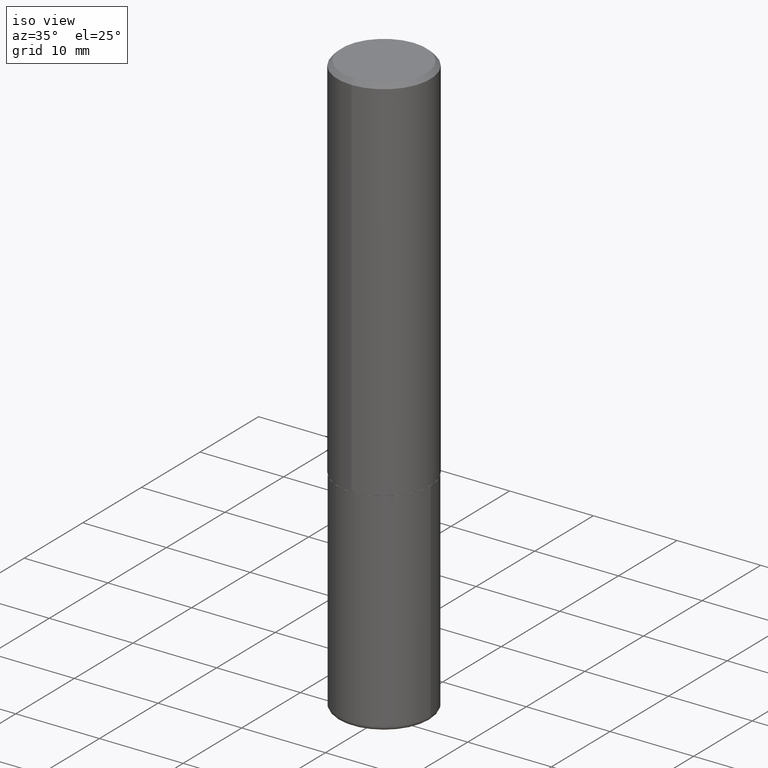
[diagram: clean part render]
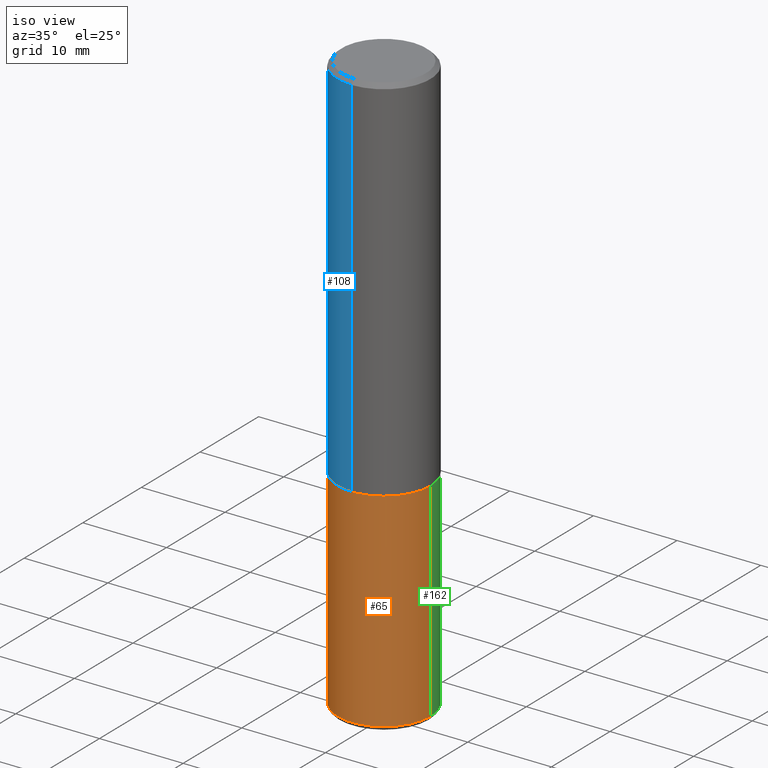
[diagram: same view with three faces highlighted in distinct colors, each labeled with its STEP entity id]
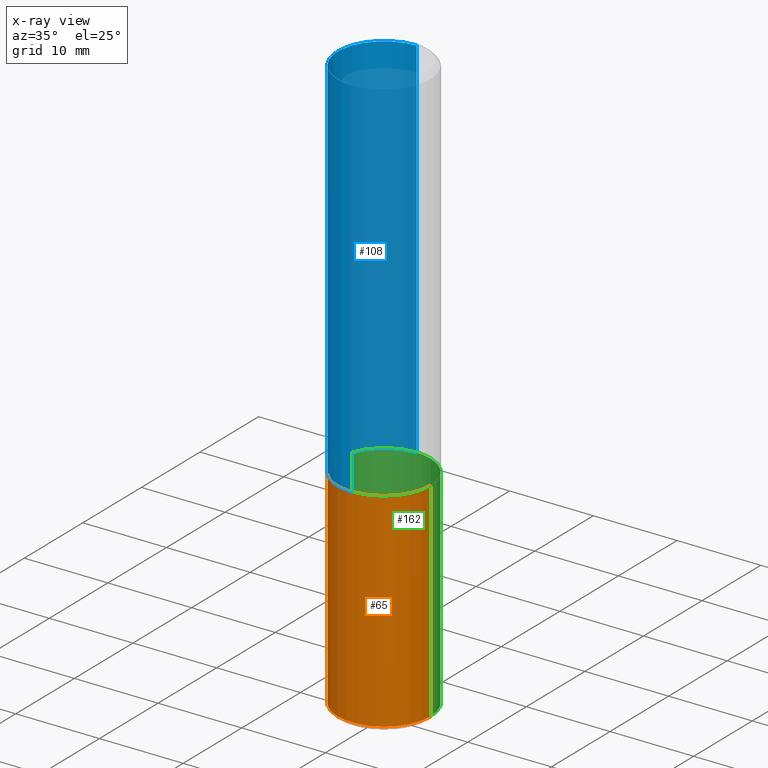
[diagram: x-ray of the same camera — body ghosted, the three highlighted faces saturated]
A machine part, iso view with three faces highlighted in distinct colors.
The next image is the same camera in x-ray (body ghosted, the three faces saturated) — at least one of them is partly hidden behind the body in this view.
Their STEP definitions:

[orange] entity #65 — the highlighted cylindrical surface (partial cylindrical patch) has radius 5.5562 mm, axis along (-0, 0, 1).
#4 = CIRCLE ( 'NONE', #245, 0.2187500000000000000 ) ;
#21 = LINE ( 'NONE', #213, #343 ) ;
#48 = ORIENTED_EDGE ( 'NONE', *, *, #183, .F. ) ;
#57 = DIRECTION ( 'NONE',  ( -2.445468806185136597E-29, 3.491481338843145583E-15, 1.000000000000000000 ) ) ;
#65 = ADVANCED_FACE ( 'NONE', ( #147 ), #405, .T. ) ;
#99 = DIRECTION ( 'NONE',  ( -2.445468806185136877E-29, 3.491481338843145188E-15, 1.000000000000000000 ) ) ;
#114 = ORIENTED_EDGE ( 'NONE', *, *, #133, .F. ) ;
#126 = DIRECTION ( 'NONE',  ( -2.445468806185136597E-29, 3.491481338843145583E-15, 1.000000000000000000 ) ) ;
#132 = VECTOR ( 'NONE', #99, 39.37007874015748143 ) ;
#133 = EDGE_CURVE ( 'NONE', #145, #173, #21, .T. ) ;
#143 = ORIENTED_EDGE ( 'NONE', *, *, #283, .T. ) ;
#145 = VERTEX_POINT ( 'NONE', #262 ) ;
#147 = FACE_OUTER_BOUND ( 'NONE', #330, .T. ) ;
#163 = CARTESIAN_POINT ( 'NONE',  ( 0.2187500000000000000, -7.637615428719375514E-15, -1.750000000000000000 ) ) ;
#173 = VERTEX_POINT ( 'NONE', #255 ) ;
#183 = EDGE_CURVE ( 'NONE', #173, #341, #207, .T. ) ;
#192 = LINE ( 'NONE', #313, #132 ) ;
#207 = CIRCLE ( 'NONE', #285, 0.2187500000000000000 ) ;
#213 = CARTESIAN_POINT ( 'NONE',  ( -0.2187500000000000000, 1.554312234475219157E-15, -1.076017050993260622E-29 ) ) ;
#226 = CARTESIAN_POINT ( 'NONE',  ( 4.279570410823988484E-29, -6.110092342975504671E-15, -1.750000000000000000 ) ) ;
#228 = CARTESIAN_POINT ( 'NONE',  ( 6.676129840885423672E-29, -9.531744055041786561E-15, -2.729999999999999982 ) ) ;
#245 = AXIS2_PLACEMENT_3D ( 'NONE', #228, #126, #310 ) ;
#255 = CARTESIAN_POINT ( 'NONE',  ( -0.2187500000000000000, -6.266605964533427643E-15, -1.750000000000000000 ) ) ;
#262 = CARTESIAN_POINT ( 'NONE',  ( -0.2187499999999999445, -7.977431820566568982E-15, -2.729999999999999982 ) ) ;
#281 = DIRECTION ( 'NONE',  ( 1.000000000000000000, -6.982962677686267499E-15, 0.000000000000000000 ) ) ;
#283 = EDGE_CURVE ( 'NONE', #145, #388, #4, .T. ) ;
#285 = AXIS2_PLACEMENT_3D ( 'NONE', #226, #414, #281 ) ;
#301 = DIRECTION ( 'NONE',  ( -2.445468806185136877E-29, 3.491481338843145188E-15, 1.000000000000000000 ) ) ;
#305 = CARTESIAN_POINT ( 'NONE',  ( 0.000000000000000000, 0.000000000000000000, 0.000000000000000000 ) ) ;
#306 = EDGE_CURVE ( 'NONE', #388, #341, #192, .T. ) ;
#310 = DIRECTION ( 'NONE',  ( 1.000000000000000000, -6.982962677686262766E-15, 0.000000000000000000 ) ) ;
#313 = CARTESIAN_POINT ( 'NONE',  ( 0.2187500000000000000, -1.527523085743870843E-15, 1.066663669705360885E-29 ) ) ;
#327 = AXIS2_PLACEMENT_3D ( 'NONE', #305, #57, #357 ) ;
#330 = EDGE_LOOP ( 'NONE', ( #114, #143, #411, #48 ) ) ;
#341 = VERTEX_POINT ( 'NONE', #163 ) ;
#343 = VECTOR ( 'NONE', #301, 39.37007874015748143 ) ;
#357 = DIRECTION ( 'NONE',  ( 1.000000000000000000, -6.982962677686266711E-15, 4.876176775795935232E-29 ) ) ;
#388 = VERTEX_POINT ( 'NONE', #409 ) ;
#405 = CYLINDRICAL_SURFACE ( 'NONE', #327, 0.2187500000000000000 ) ;
#409 = CARTESIAN_POINT ( 'NONE',  ( 0.2187499999999999445, -1.105926714078565662E-14, -2.729999999999999982 ) ) ;
#411 = ORIENTED_EDGE ( 'NONE', *, *, #306, .T. ) ;
#414 = DIRECTION ( 'NONE',  ( -2.445468806185136597E-29, 3.491481338843145583E-15, 1.000000000000000000 ) ) ;

[blue] entity #108 — the highlighted cylindrical surface (partial cylindrical patch) has radius 5.5563 mm, axis along (-0, 0, 1).
#5 = CARTESIAN_POINT ( 'NONE',  ( 1.554312234475241442E-15, 0.2187499999999940603, -1.749000000000000554 ) ) ;
#19 = FACE_OUTER_BOUND ( 'NONE', #239, .T. ) ;
#25 = ORIENTED_EDGE ( 'NONE', *, *, #202, .F. ) ;
#26 = DIRECTION ( 'NONE',  ( -6.982962677686265922E-15, -1.000000000000000000, 3.746534391310986401E-15 ) ) ;
#59 = DIRECTION ( 'NONE',  ( -2.445860609712153688E-29, 3.490920253892385141E-15, 1.000000000000000000 ) ) ;
#61 = ORIENTED_EDGE ( 'NONE', *, *, #288, .T. ) ;
#63 = CIRCLE ( 'NONE', #399, 0.2187500000000001943 ) ;
#78 = CARTESIAN_POINT ( 'NONE',  ( 0.000000000000000000, 0.000000000000000000, 0.000000000000000000 ) ) ;
#80 = CYLINDRICAL_SURFACE ( 'NONE', #390, 0.2187500000000000833 ) ;
#86 = ORIENTED_EDGE ( 'NONE', *, *, #400, .T. ) ;
#108 = ADVANCED_FACE ( 'NONE', ( #19 ), #80, .T. ) ;
#123 = DIRECTION ( 'NONE',  ( -2.445860609712153688E-29, 3.490920253892384747E-15, 1.000000000000000000 ) ) ;
#154 = LINE ( 'NONE', #257, #391 ) ;
#165 = DIRECTION ( 'NONE',  ( -2.445860609712153688E-29, 3.490920253892385141E-15, 1.000000000000000000 ) ) ;
#186 = CARTESIAN_POINT ( 'NONE',  ( -1.527523085743829231E-15, -0.2187500000000063005, -1.748999999999999000 ) ) ;
#188 = VERTEX_POINT ( 'NONE', #412 ) ;
#199 = DIRECTION ( 'NONE',  ( -6.982962677686265922E-15, -1.000000000000000000, 3.490920253892385141E-15 ) ) ;
#202 = EDGE_CURVE ( 'NONE', #336, #335, #154, .T. ) ;
#234 = CARTESIAN_POINT ( 'NONE',  ( -1.527523085743871237E-15, -0.2187500000000000833, 7.636388055389595701E-16 ) ) ;
#238 = DIRECTION ( 'NONE',  ( -2.445860609712153688E-29, 3.490920253892384747E-15, 1.000000000000000000 ) ) ;
#239 = EDGE_LOOP ( 'NONE', ( #25, #61, #86, #393 ) ) ;
#257 = CARTESIAN_POINT ( 'NONE',  ( 1.554312234475219551E-15, 0.2187500000000000833, -7.636388055389595701E-16 ) ) ;
#268 = VERTEX_POINT ( 'NONE', #186 ) ;
#277 = DIRECTION ( 'NONE',  ( -2.445860609712153688E-29, 3.490920253892385141E-15, 1.000000000000000000 ) ) ;
#288 = EDGE_CURVE ( 'NONE', #336, #268, #63, .T. ) ;
#292 = LINE ( 'NONE', #234, #296 ) ;
#296 = VECTOR ( 'NONE', #238, 39.37007874015748143 ) ;
#319 = CARTESIAN_POINT ( 'NONE',  ( 4.891721219424319847E-31, -6.981840507784787292E-17, -0.02000000000000005246 ) ) ;
#335 = VERTEX_POINT ( 'NONE', #354 ) ;
#336 = VERTEX_POINT ( 'NONE', #5 ) ;
#337 = DIRECTION ( 'NONE',  ( -6.982962677686265922E-15, -1.000000000000000000, 3.492862791899308860E-15 ) ) ;
#350 = CIRCLE ( 'NONE', #417, 0.2187499999999999445 ) ;
#354 = CARTESIAN_POINT ( 'NONE',  ( 1.527523085743870843E-15, 0.2187499999999998890, -0.02000000000000081574 ) ) ;
#369 = EDGE_CURVE ( 'NONE', #335, #188, #350, .T. ) ;
#390 = AXIS2_PLACEMENT_3D ( 'NONE', #78, #277, #199 ) ;
#391 = VECTOR ( 'NONE', #123, 39.37007874015748143 ) ;
#393 = ORIENTED_EDGE ( 'NONE', *, *, #369, .F. ) ;
#399 = AXIS2_PLACEMENT_3D ( 'NONE', #418, #59, #26 ) ;
#400 = EDGE_CURVE ( 'NONE', #268, #188, #292, .T. ) ;
#412 = CARTESIAN_POINT ( 'NONE',  ( -1.500733937012521346E-15, -0.2187500000000000278, -0.01999999999999928571 ) ) ;
#417 = AXIS2_PLACEMENT_3D ( 'NONE', #319, #165, #337 ) ;
#418 = CARTESIAN_POINT ( 'NONE',  ( 4.277810206386556213E-29, -6.105619524057781466E-15, -1.748999999999999888 ) ) ;

[green] entity #162 — the highlighted cylindrical surface (partial cylindrical patch) has radius 5.5562 mm, axis along (-0, 0, 1).
#20 = ORIENTED_EDGE ( 'NONE', *, *, #306, .F. ) ;
#21 = LINE ( 'NONE', #213, #343 ) ;
#50 = EDGE_LOOP ( 'NONE', ( #264, #157, #96, #20 ) ) ;
#82 = EDGE_CURVE ( 'NONE', #388, #145, #385, .T. ) ;
#89 = AXIS2_PLACEMENT_3D ( 'NONE', #308, #92, #195 ) ;
#92 = DIRECTION ( 'NONE',  ( -2.445468806185136597E-29, 3.491481338843145583E-15, 1.000000000000000000 ) ) ;
#96 = ORIENTED_EDGE ( 'NONE', *, *, #193, .F. ) ;
#99 = DIRECTION ( 'NONE',  ( -2.445468806185136877E-29, 3.491481338843145188E-15, 1.000000000000000000 ) ) ;
#120 = CYLINDRICAL_SURFACE ( 'NONE', #89, 0.2187500000000000000 ) ;
#127 = AXIS2_PLACEMENT_3D ( 'NONE', #241, #249, #266 ) ;
#132 = VECTOR ( 'NONE', #99, 39.37007874015748143 ) ;
#133 = EDGE_CURVE ( 'NONE', #145, #173, #21, .T. ) ;
#145 = VERTEX_POINT ( 'NONE', #262 ) ;
#157 = ORIENTED_EDGE ( 'NONE', *, *, #133, .T. ) ;
#158 = DIRECTION ( 'NONE',  ( 1.000000000000000000, -6.982962677686267499E-15, 0.000000000000000000 ) ) ;
#159 = CIRCLE ( 'NONE', #273, 0.2187500000000000000 ) ;
#162 = ADVANCED_FACE ( 'NONE', ( #258 ), #120, .T. ) ;
#163 = CARTESIAN_POINT ( 'NONE',  ( 0.2187500000000000000, -7.637615428719375514E-15, -1.750000000000000000 ) ) ;
#173 = VERTEX_POINT ( 'NONE', #255 ) ;
#192 = LINE ( 'NONE', #313, #132 ) ;
#193 = EDGE_CURVE ( 'NONE', #341, #173, #159, .T. ) ;
#195 = DIRECTION ( 'NONE',  ( 1.000000000000000000, -6.982962677686266711E-15, 4.876176775795935232E-29 ) ) ;
#213 = CARTESIAN_POINT ( 'NONE',  ( -0.2187500000000000000, 1.554312234475219157E-15, -1.076017050993260622E-29 ) ) ;
#241 = CARTESIAN_POINT ( 'NONE',  ( 6.676129840885423672E-29, -9.531744055041786561E-15, -2.729999999999999982 ) ) ;
#249 = DIRECTION ( 'NONE',  ( -2.445468806185136597E-29, 3.491481338843145583E-15, 1.000000000000000000 ) ) ;
#255 = CARTESIAN_POINT ( 'NONE',  ( -0.2187500000000000000, -6.266605964533427643E-15, -1.750000000000000000 ) ) ;
#258 = FACE_OUTER_BOUND ( 'NONE', #50, .T. ) ;
#262 = CARTESIAN_POINT ( 'NONE',  ( -0.2187499999999999445, -7.977431820566568982E-15, -2.729999999999999982 ) ) ;
#264 = ORIENTED_EDGE ( 'NONE', *, *, #82, .T. ) ;
#266 = DIRECTION ( 'NONE',  ( 1.000000000000000000, -6.982962677686262766E-15, 0.000000000000000000 ) ) ;
#273 = AXIS2_PLACEMENT_3D ( 'NONE', #284, #410, #158 ) ;
#284 = CARTESIAN_POINT ( 'NONE',  ( 4.279570410823988484E-29, -6.110092342975504671E-15, -1.750000000000000000 ) ) ;
#301 = DIRECTION ( 'NONE',  ( -2.445468806185136877E-29, 3.491481338843145188E-15, 1.000000000000000000 ) ) ;
#306 = EDGE_CURVE ( 'NONE', #388, #341, #192, .T. ) ;
#308 = CARTESIAN_POINT ( 'NONE',  ( 0.000000000000000000, 0.000000000000000000, 0.000000000000000000 ) ) ;
#313 = CARTESIAN_POINT ( 'NONE',  ( 0.2187500000000000000, -1.527523085743870843E-15, 1.066663669705360885E-29 ) ) ;
#341 = VERTEX_POINT ( 'NONE', #163 ) ;
#343 = VECTOR ( 'NONE', #301, 39.37007874015748143 ) ;
#385 = CIRCLE ( 'NONE', #127, 0.2187500000000000000 ) ;
#388 = VERTEX_POINT ( 'NONE', #409 ) ;
#409 = CARTESIAN_POINT ( 'NONE',  ( 0.2187499999999999445, -1.105926714078565662E-14, -2.729999999999999982 ) ) ;
#410 = DIRECTION ( 'NONE',  ( -2.445468806185136597E-29, 3.491481338843145583E-15, 1.000000000000000000 ) ) ;